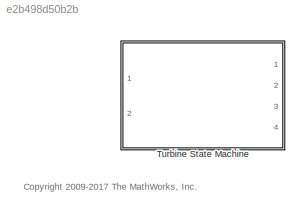
MODEL slx_e2b498d50b2b
KIND library
CONFIG AbsTol = auto
CONFIG EnableMultiTasking = on
CONFIG FixedStep = auto
CONFIG MaxStep = auto
CONFIG MinStep = auto
CONFIG RelTol = 1e-3
CONFIG SampleTimeConstraint = Unconstrained
CONFIG Solver = ode45
CONFIG SolverName = ode45
CONFIG StartTime = 0.0
CONFIG StopTime = 10.0
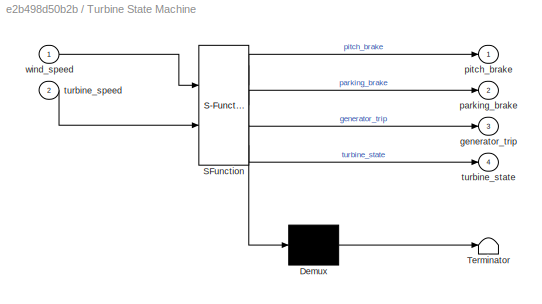
BLOCK [SubSystem] Turbine State Machine
  ErrorFcn = Stateflow.Translate.translate
  PermitHierarchicalResolution = ExplicitOnly
  Ports = [2, 4]
  RequestExecContextInheritance = off
  SFBlockType = Chart
  TreatAsAtomicUnit = on
  Variant = off
BLOCK [Demux] Turbine State Machine/ Demux 
  Outputs = 1
  Ports = [1, 1]
BLOCK [S-Function] Turbine State Machine/ SFunction 
  EnableBusSupport = off
  FunctionName = sf_sfun
  PortCounts = [2 5]
  Ports = [2, 5]
  SFcnIsStateOwnerBlock = off
  SFunctionDeploymentMode = off
  Tag = Stateflow S-Function Turbine_State_Machine_Lib 1
BLOCK [Terminator] Turbine State Machine/ Terminator 
BLOCK [Outport] Turbine State Machine/generator_trip
  IconDisplay = Port number
  Port = 3
BLOCK [Outport] Turbine State Machine/parking_brake
  IconDisplay = Port number
  Port = 2
BLOCK [Outport] Turbine State Machine/pitch_brake
  IconDisplay = Port number
BLOCK [Inport] Turbine State Machine/turbine_speed
  IconDisplay = Port number
  Port = 2
BLOCK [Outport] Turbine State Machine/turbine_state
  IconDisplay = Port number
  Port = 4
BLOCK [Inport] Turbine State Machine/wind_speed
  IconDisplay = Port number
ANNOTATION (root): <copyright redacted>
CHART Turbine State Machine states=4 transitions=7
  STATE_LABEL 'Generating\nentry: parking_brake = 0;\n          generator_trip = 0;\n          pitch_brake = 0;\n          turbine_state = 2;'
  STATE_LABEL 'Startup\nentry: parking_brake = 0;\n          generator_trip = 1;\n          pitch_brake = 0;\n          turbine_state = 1;'
  STATE_LABEL 'Park\nentry: parking_brake = 1;\n          generator_trip = 1;\n          pitch_brake = 1;\n          turbine_state = 0;'
  STATE_LABEL 'Brake\nentry: parking_brake = 0;\n          generator_trip = 1;\n          pitch_brake = 1;\n          turbine_state = 3;'
